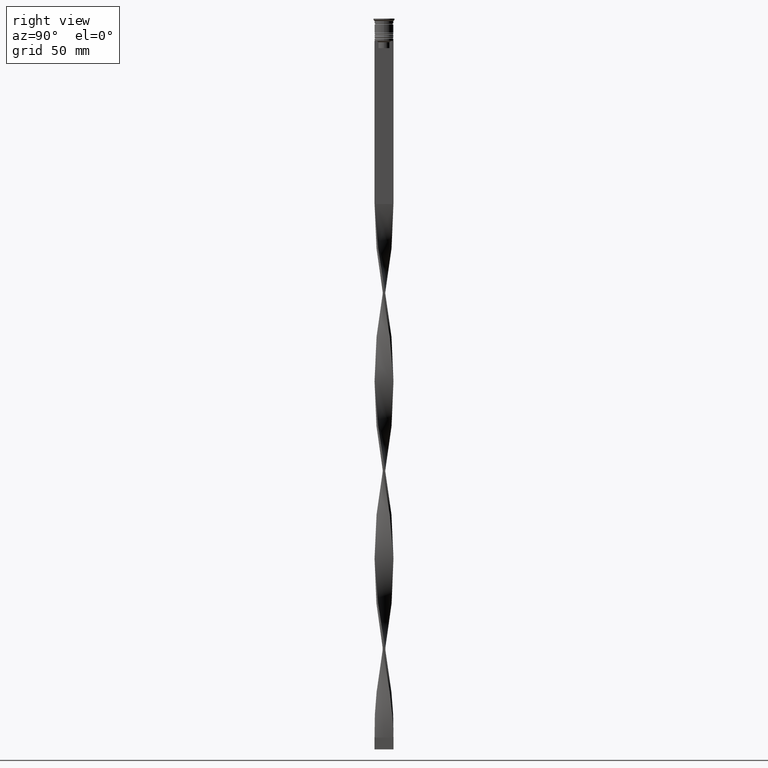
[diagram: clean part render]
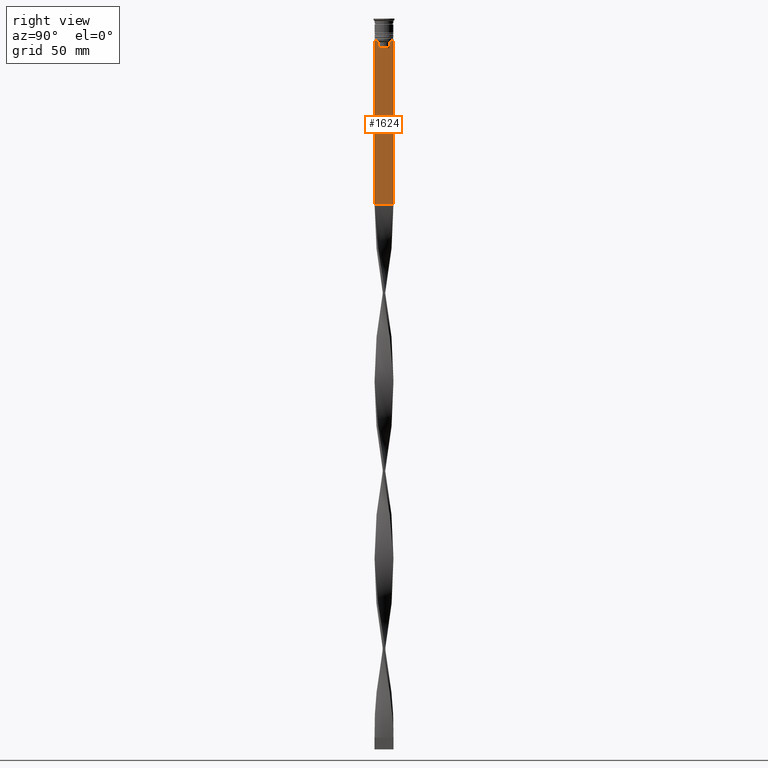
[diagram: same view with one face highlighted and labeled with its STEP entity id]
A machine part, right view. The second image highlights one B-rep face of the part: STEP entity #1624.
In plain terms, the highlighted planar face has unit normal (-1, 0, 0).
Its self-contained STEP definition (entity closure, byte-faithful):
#155 = VERTEX_POINT ( 'NONE', #1363 ) ;
#177 = VERTEX_POINT ( 'NONE', #2680 ) ;
#181 = CARTESIAN_POINT ( 'NONE',  ( 0.5000000000000000000, -2.347338918861097135, -12.50000000000000000 ) ) ;
#212 = DIRECTION ( 'NONE',  ( 0.000000000000000000, 0.000000000000000000, -1.000000000000000000 ) ) ;
#234 = LINE ( 'NONE', #1164, #1990 ) ;
#279 = ORIENTED_EDGE ( 'NONE', *, *, #2409, .T. ) ;
#360 = VERTEX_POINT ( 'NONE', #2430 ) ;
#390 = DIRECTION ( 'NONE',  ( 0.000000000000000000, 1.000000000000000000, 0.000000000000000000 ) ) ;
#406 = CARTESIAN_POINT ( 'NONE',  ( 0.5000000000000000000, -2.347338918861097135, -10.00000000000000000 ) ) ;
#433 = LINE ( 'NONE', #1999, #2995 ) ;
#442 = CARTESIAN_POINT ( 'NONE',  ( 0.5000000000000000000, -4.000000000000000000, -9.500000000000000000 ) ) ;
#449 = DIRECTION ( 'NONE',  ( 0.000000000000000000, 0.000000000000000000, -1.000000000000000000 ) ) ;
#466 = VERTEX_POINT ( 'NONE', #1904 ) ;
#498 = LINE ( 'NONE', #2731, #1190 ) ;
#515 = VERTEX_POINT ( 'NONE', #3562 ) ;
#573 = DIRECTION ( 'NONE',  ( 0.000000000000000000, -1.000000000000000000, 0.000000000000000000 ) ) ;
#592 = DIRECTION ( 'NONE',  ( 0.000000000000000000, -1.000000000000000000, 0.000000000000000000 ) ) ;
#610 = CARTESIAN_POINT ( 'NONE',  ( 0.5000000000000000000, 2.687094542495898075, -9.666938847453439010 ) ) ;
#668 = EDGE_LOOP ( 'NONE', ( #1900, #2818, #2892, #3050, #3535, #3524, #3867, #2204, #3234, #2202, #2011, #279 ) ) ;
#687 = CARTESIAN_POINT ( 'NONE',  ( 0.5000000000000000000, -2.856571371417138572, -9.500000000000000000 ) ) ;
#729 = VERTEX_POINT ( 'NONE', #2334 ) ;
#806 = VECTOR ( 'NONE', #573, 1000.000000000000000 ) ;
#843 = EDGE_CURVE ( 'NONE', #177, #515, #498, .T. ) ;
#870 = VECTOR ( 'NONE', #2906, 1000.000000000000000 ) ;
#877 = DIRECTION ( 'NONE',  ( 0.000000000000000000, -1.000000000000000000, 0.000000000000000000 ) ) ;
#887 = EDGE_CURVE ( 'NONE', #466, #1298, #3028, .T. ) ;
#909 = EDGE_CURVE ( 'NONE', #360, #3807, #3378, .T. ) ;
#1016 = EDGE_CURVE ( 'NONE', #515, #466, #1887, .T. ) ;
#1049 = B_SPLINE_CURVE_WITH_KNOTS ( 'NONE', 3,
 ( #406, #2489, #3511, #687 ),
 .UNSPECIFIED., .F., .F.,
 ( 4, 4 ),
 ( 0.01178336557230038467, 0.01249758354768160280 ),
 .UNSPECIFIED. ) ;
#1081 = DIRECTION ( 'NONE',  ( 0.000000000000000000, 0.000000000000000000, -1.000000000000000000 ) ) ;
#1164 = CARTESIAN_POINT ( 'NONE',  ( 0.5000000000000000000, -4.000000000000000000, -9.500000000000000000 ) ) ;
#1190 = VECTOR ( 'NONE', #877, 1000.000000000000000 ) ;
#1222 = CARTESIAN_POINT ( 'NONE',  ( 0.5000000000000000000, 2.517407211010872281, -9.833663366238582171 ) ) ;
#1298 = VERTEX_POINT ( 'NONE', #2913 ) ;
#1346 = CARTESIAN_POINT ( 'NONE',  ( 0.5000000000000000000, -4.000000000000000000, -78.50000000000000000 ) ) ;
#1358 = CARTESIAN_POINT ( 'NONE',  ( 0.5000000000000000000, -4.000000000000000000, -1.437742251701450202 ) ) ;
#1363 = CARTESIAN_POINT ( 'NONE',  ( 0.5000000000000000000, 4.000000000000000000, -78.50000000000000000 ) ) ;
#1463 = VERTEX_POINT ( 'NONE', #181 ) ;
#1517 = CARTESIAN_POINT ( 'NONE',  ( 0.5000000000000000000, -4.000000000000000000, -9.500000000000000000 ) ) ;
#1624 = ADVANCED_FACE ( 'NONE', ( #3581 ), #3287, .F. ) ;
#1644 = CARTESIAN_POINT ( 'NONE',  ( 0.5000000000000000000, 2.399999999999996803, -12.50000000000000000 ) ) ;
#1710 = LINE ( 'NONE', #1963, #4041 ) ;
#1842 = CARTESIAN_POINT ( 'NONE',  ( 0.5000000000000000000, 4.000000000000000000, -9.500000000000000000 ) ) ;
#1887 = B_SPLINE_CURVE_WITH_KNOTS ( 'NONE', 3,
 ( #3109, #610, #1222, #3176 ),
 .UNSPECIFIED., .F., .F.,
 ( 4, 4 ),
 ( 0.004956812174141191595, 0.005670477137898149653 ),
 .UNSPECIFIED. ) ;
#1900 = ORIENTED_EDGE ( 'NONE', *, *, #843, .T. ) ;
#1904 = CARTESIAN_POINT ( 'NONE',  ( 0.5000000000000000000, 2.347338918861097135, -10.00000000000000000 ) ) ;
#1923 = EDGE_CURVE ( 'NONE', #2968, #729, #1049, .T. ) ;
#1963 = CARTESIAN_POINT ( 'NONE',  ( 0.5000000000000000000, -4.000000000000000000, -1.437742251701450202 ) ) ;
#1970 = EDGE_CURVE ( 'NONE', #2751, #155, #3840, .T. ) ;
#1985 = EDGE_CURVE ( 'NONE', #1298, #1463, #3804, .T. ) ;
#1990 = VECTOR ( 'NONE', #592, 1000.000000000000000 ) ;
#1999 = CARTESIAN_POINT ( 'NONE',  ( 0.5000000000000000000, 4.000000000000000000, -1.437742251701450202 ) ) ;
#2011 = ORIENTED_EDGE ( 'NONE', *, *, #2771, .F. ) ;
#2144 = EDGE_CURVE ( 'NONE', #729, #360, #3936, .T. ) ;
#2175 = CARTESIAN_POINT ( 'NONE',  ( 0.5000000000000000000, -2.347338918861097135, 0.000000000000000000 ) ) ;
#2185 = VECTOR ( 'NONE', #3320, 1000.000000000000000 ) ;
#2202 = ORIENTED_EDGE ( 'NONE', *, *, #1970, .T. ) ;
#2204 = ORIENTED_EDGE ( 'NONE', *, *, #909, .T. ) ;
#2334 = CARTESIAN_POINT ( 'NONE',  ( 0.5000000000000000000, -2.856571371417138572, -9.500000000000000000 ) ) ;
#2356 = CARTESIAN_POINT ( 'NONE',  ( 0.5000000000000000000, 2.347338918861097135, 0.000000000000000000 ) ) ;
#2409 = EDGE_CURVE ( 'NONE', #3837, #177, #234, .T. ) ;
#2430 = CARTESIAN_POINT ( 'NONE',  ( 0.5000000000000000000, -3.867815921162741422, -9.500000000000000000 ) ) ;
#2489 = CARTESIAN_POINT ( 'NONE',  ( 0.5000000000000000000, -2.517408374291112416, -9.833662228483172285 ) ) ;
#2520 = VECTOR ( 'NONE', #390, 1000.000000000000000 ) ;
#2680 = CARTESIAN_POINT ( 'NONE',  ( 0.5000000000000000000, 3.867815921162741422, -9.500000000000000000 ) ) ;
#2726 = EDGE_CURVE ( 'NONE', #3807, #2751, #1710, .T. ) ;
#2731 = CARTESIAN_POINT ( 'NONE',  ( 0.5000000000000000000, -4.000000000000000000, -9.500000000000000000 ) ) ;
#2751 = VERTEX_POINT ( 'NONE', #1346 ) ;
#2757 = LINE ( 'NONE', #2175, #2998 ) ;
#2771 = EDGE_CURVE ( 'NONE', #3837, #155, #433, .T. ) ;
#2818 = ORIENTED_EDGE ( 'NONE', *, *, #1016, .T. ) ;
#2892 = ORIENTED_EDGE ( 'NONE', *, *, #887, .T. ) ;
#2903 = CARTESIAN_POINT ( 'NONE',  ( 0.5000000000000000000, -2.347338918861097135, -10.00000000000000000 ) ) ;
#2906 = DIRECTION ( 'NONE',  ( 0.000000000000000000, -1.000000000000000000, 0.000000000000000000 ) ) ;
#2913 = CARTESIAN_POINT ( 'NONE',  ( 0.5000000000000000000, 2.347338918861097135, -12.50000000000000000 ) ) ;
#2968 = VERTEX_POINT ( 'NONE', #2903 ) ;
#2970 = DIRECTION ( 'NONE',  ( 0.000000000000000000, 0.000000000000000000, 1.000000000000000000 ) ) ;
#2995 = VECTOR ( 'NONE', #449, 1000.000000000000000 ) ;
#2998 = VECTOR ( 'NONE', #4022, 1000.000000000000000 ) ;
#3028 = LINE ( 'NONE', #2356, #3308 ) ;
#3050 = ORIENTED_EDGE ( 'NONE', *, *, #1985, .T. ) ;
#3109 = CARTESIAN_POINT ( 'NONE',  ( 0.5000000000000000000, 2.856571371417138572, -9.500000000000000000 ) ) ;
#3120 = AXIS2_PLACEMENT_3D ( 'NONE', #1358, #3249, #2970 ) ;
#3140 = CARTESIAN_POINT ( 'NONE',  ( 0.5000000000000000000, -4.000000000000000000, -78.50000000000000000 ) ) ;
#3176 = CARTESIAN_POINT ( 'NONE',  ( 0.5000000000000000000, 2.347338918861097135, -10.00000000000000000 ) ) ;
#3234 = ORIENTED_EDGE ( 'NONE', *, *, #2726, .T. ) ;
#3249 = DIRECTION ( 'NONE',  ( -1.000000000000000000, 0.000000000000000000, 0.000000000000000000 ) ) ;
#3287 = PLANE ( 'NONE',  #3120 ) ;
#3308 = VECTOR ( 'NONE', #212, 1000.000000000000000 ) ;
#3320 = DIRECTION ( 'NONE',  ( 0.000000000000000000, -1.000000000000000000, 0.000000000000000000 ) ) ;
#3378 = LINE ( 'NONE', #1517, #806 ) ;
#3408 = CARTESIAN_POINT ( 'NONE',  ( 0.5000000000000000000, -4.000000000000000000, -9.500000000000000000 ) ) ;
#3511 = CARTESIAN_POINT ( 'NONE',  ( 0.5000000000000000000, -2.687095498514037839, -9.666937905752043037 ) ) ;
#3524 = ORIENTED_EDGE ( 'NONE', *, *, #1923, .T. ) ;
#3535 = ORIENTED_EDGE ( 'NONE', *, *, #3891, .T. ) ;
#3562 = CARTESIAN_POINT ( 'NONE',  ( 0.5000000000000000000, 2.856571371417138572, -9.500000000000000000 ) ) ;
#3581 = FACE_OUTER_BOUND ( 'NONE', #668, .T. ) ;
#3804 = LINE ( 'NONE', #1644, #870 ) ;
#3807 = VERTEX_POINT ( 'NONE', #3408 ) ;
#3837 = VERTEX_POINT ( 'NONE', #1842 ) ;
#3840 = LINE ( 'NONE', #3140, #2520 ) ;
#3867 = ORIENTED_EDGE ( 'NONE', *, *, #2144, .T. ) ;
#3891 = EDGE_CURVE ( 'NONE', #1463, #2968, #2757, .T. ) ;
#3936 = LINE ( 'NONE', #442, #2185 ) ;
#4022 = DIRECTION ( 'NONE',  ( -0.000000000000000000, -0.000000000000000000, 1.000000000000000000 ) ) ;
#4041 = VECTOR ( 'NONE', #1081, 1000.000000000000000 ) ;